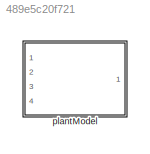
MODEL slx_489e5c20f721
KIND library
CONFIG AbsTol = auto
CONFIG EnableMultiTasking = off
CONFIG FixedStep = auto
CONFIG MaxStep = auto
CONFIG MinStep = auto
CONFIG RelTol = 1e-3
CONFIG SampleTimeConstraint = Unconstrained
CONFIG Solver = VariableStepAuto
CONFIG SolverName = VariableStepAuto
CONFIG StartTime = 0.0
CONFIG StopTime = 10.0
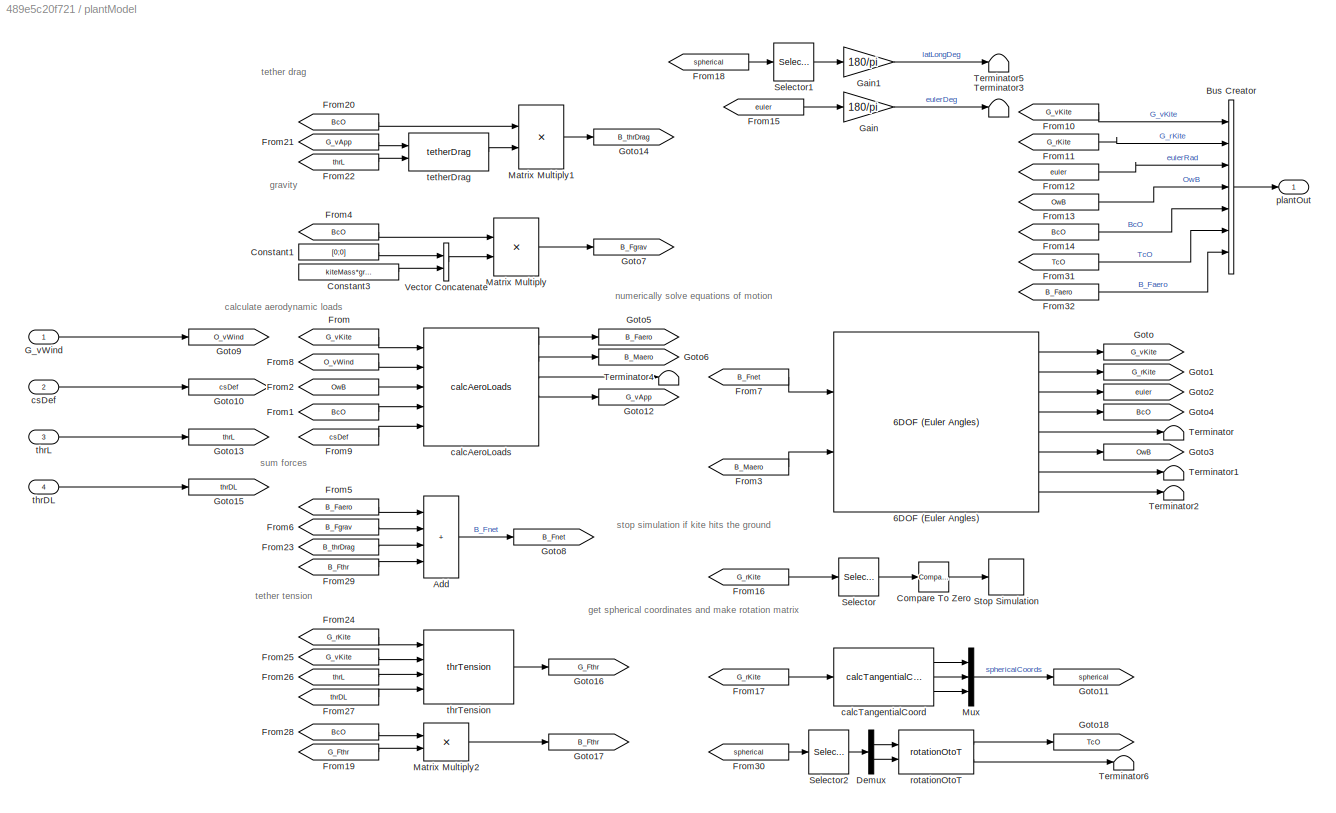
BLOCK [SubSystem] plantModel
  Ports = [4, 1]
  RequestExecContextInheritance = off
BLOCK [Reference] plantModel/6DOF (Euler Angles)  REF=shared6dof/6DOF (Euler Angles)
  Ports = [2, 8]
  SourceBlock = shared6dof/6DOF (Euler Angles)
  SourceProductBaseCode = AE,PW,MT,VE,VP
  SourceType = 6DOF EoM (Body Axis)
BLOCK [Sum] plantModel/Add
  IconShape = rectangular
  Inputs = ++++
  Ports = [4, 1]
BLOCK [BusCreator] plantModel/Bus Creator
  DisplayOption = bar
  InheritFromInputs = on
  Inputs = 7
  Ports = [7, 1]
BLOCK [Reference] plantModel/Compare To Zero  REF=simulink/Logic and Bit
Operations/Compare
To Zero
  Ports = [1, 1]
  SourceBlock = simulink/Logic and Bit\nOperations/Compare\nTo Zero
  SourceProductBaseCode = SL
  SourceType = Compare To Zero
BLOCK [Constant] plantModel/Constant1
  Value = [0;0]
  VectorParams1D = off
BLOCK [Constant] plantModel/Constant3
  Value = kiteMass*gravAccl
BLOCK [Demux] plantModel/Demux
  Outputs = 2
  Ports = [1, 2]
BLOCK [From] plantModel/From
  GotoTag = G_vKite
BLOCK [From] plantModel/From1
  GotoTag = BcO
BLOCK [From] plantModel/From10
  GotoTag = G_vKite
BLOCK [From] plantModel/From11
  GotoTag = G_rKite
BLOCK [From] plantModel/From12
  GotoTag = euler
BLOCK [From] plantModel/From13
  GotoTag = OwB
BLOCK [From] plantModel/From14
  GotoTag = BcO
BLOCK [From] plantModel/From15
  GotoTag = euler
BLOCK [From] plantModel/From16
  GotoTag = G_rKite
BLOCK [From] plantModel/From17
  GotoTag = G_rKite
BLOCK [From] plantModel/From18
  GotoTag = spherical
BLOCK [From] plantModel/From19
  GotoTag = G_Fthr
BLOCK [From] plantModel/From2
  GotoTag = OwB
BLOCK [From] plantModel/From20
  GotoTag = BcO
BLOCK [From] plantModel/From21
  GotoTag = G_vApp
BLOCK [From] plantModel/From22
  GotoTag = thrL
BLOCK [From] plantModel/From23
  GotoTag = B_thrDrag
BLOCK [From] plantModel/From24
  GotoTag = G_rKite
BLOCK [From] plantModel/From25
  GotoTag = G_vKite
BLOCK [From] plantModel/From26
  GotoTag = thrL
BLOCK [From] plantModel/From27
  GotoTag = thrDL
BLOCK [From] plantModel/From28
  GotoTag = BcO
BLOCK [From] plantModel/From29
  GotoTag = B_Fthr
BLOCK [From] plantModel/From3
  GotoTag = B_Maero
BLOCK [From] plantModel/From30
  GotoTag = spherical
BLOCK [From] plantModel/From31
  GotoTag = TcO
BLOCK [From] plantModel/From32
  GotoTag = B_Faero
BLOCK [From] plantModel/From4
  GotoTag = BcO
BLOCK [From] plantModel/From5
  GotoTag = B_Faero
BLOCK [From] plantModel/From6
  GotoTag = B_Fgrav
BLOCK [From] plantModel/From7
  GotoTag = B_Fnet
BLOCK [From] plantModel/From8
  GotoTag = O_vWind
BLOCK [From] plantModel/From9
  GotoTag = csDef
BLOCK [Inport] plantModel/G_vWind
BLOCK [Gain] plantModel/Gain
  Gain = 180/pi
BLOCK [Gain] plantModel/Gain1
  Gain = 180/pi
BLOCK [Goto] plantModel/Goto
  GotoTag = G_vKite
BLOCK [Goto] plantModel/Goto1
  GotoTag = G_rKite
BLOCK [Goto] plantModel/Goto10
  GotoTag = csDef
BLOCK [Goto] plantModel/Goto11
  GotoTag = spherical
BLOCK [Goto] plantModel/Goto12
  GotoTag = G_vApp
BLOCK [Goto] plantModel/Goto13
  GotoTag = thrL
BLOCK [Goto] plantModel/Goto14
  GotoTag = B_thrDrag
BLOCK [Goto] plantModel/Goto15
  GotoTag = thrDL
BLOCK [Goto] plantModel/Goto16
  GotoTag = G_Fthr
BLOCK [Goto] plantModel/Goto17
  GotoTag = B_Fthr
BLOCK [Goto] plantModel/Goto18
  GotoTag = TcO
BLOCK [Goto] plantModel/Goto2
  GotoTag = euler
BLOCK [Goto] plantModel/Goto3
  GotoTag = OwB
BLOCK [Goto] plantModel/Goto4
  GotoTag = BcO
BLOCK [Goto] plantModel/Goto5
  GotoTag = B_Faero
BLOCK [Goto] plantModel/Goto6
  GotoTag = B_Maero
BLOCK [Goto] plantModel/Goto7
  GotoTag = B_Fgrav
BLOCK [Goto] plantModel/Goto8
  GotoTag = B_Fnet
BLOCK [Goto] plantModel/Goto9
  GotoTag = O_vWind
BLOCK [Product] plantModel/Matrix Multiply
  Multiplication = Matrix(*)
  Ports = [2, 1]
BLOCK [Product] plantModel/Matrix Multiply1
  Multiplication = Matrix(*)
  Ports = [2, 1]
BLOCK [Product] plantModel/Matrix Multiply2
  Multiplication = Matrix(*)
  Ports = [2, 1]
BLOCK [Mux] plantModel/Mux
  DisplayOption = bar
  Inputs = 3
  Ports = [3, 1]
BLOCK [Selector] plantModel/Selector
  IndexOptions = Index vector (dialog)
  Indices = 3
  InputPortWidth = 3
  OutputSizes = 1
  Ports = [1, 1]
BLOCK [Selector] plantModel/Selector1
  IndexOptions = Index vector (dialog)
  Indices = [1 2]
  InputPortWidth = 3
  OutputSizes = 1
  Ports = [1, 1]
BLOCK [Selector] plantModel/Selector2
  IndexOptions = Index vector (dialog)
  Indices = [1 2]
  InputPortWidth = 3
  OutputSizes = 1
  Ports = [1, 1]
BLOCK [Stop] plantModel/Stop Simulation
BLOCK [Terminator] plantModel/Terminator
BLOCK [Terminator] plantModel/Terminator1
BLOCK [Terminator] plantModel/Terminator2
BLOCK [Terminator] plantModel/Terminator3
BLOCK [Terminator] plantModel/Terminator4
BLOCK [Terminator] plantModel/Terminator5
BLOCK [Terminator] plantModel/Terminator6
BLOCK [Concatenate] plantModel/Vector Concatenate
  Ports = [2, 1]
BLOCK [Reference] plantModel/calcAeroLoads  REF=calcAeroForcesInB/calcAeroLoads
  Ports = [5, 6]
  SourceBlock = calcAeroForcesInB/calcAeroLoads
BLOCK [Reference] plantModel/calcTangentialCoord  REF=calcTangentialCoord_ul/calcTangentialCoord
  Ports = [1, 3]
  SourceBlock = calcTangentialCoord_ul/calcTangentialCoord
  SourceType = SubSystem
BLOCK [Inport] plantModel/csDef
  Port = 2
BLOCK [Outport] plantModel/plantOut
BLOCK [Reference] plantModel/rotationOtoT  REF=makeOcT_cl/rotationOtoT
  Ports = [2, 2]
  SourceBlock = makeOcT_cl/rotationOtoT
  SourceType = SubSystem
BLOCK [Reference] plantModel/tetherDrag  REF=calcThrDrag_ul/tetherDrag
  Ports = [2, 1]
  SourceBlock = calcThrDrag_ul/tetherDrag
BLOCK [Inport] plantModel/thrDL
  Port = 4
BLOCK [Inport] plantModel/thrL
  Port = 3
BLOCK [Reference] plantModel/thrTension  REF=calcThrTension_ul/thrTension
  Ports = [4, 1]
  SourceBlock = calcThrTension_ul/thrTension
ANNOTATION plantModel: calculate aerodynamic loads
ANNOTATION plantModel: get spherical coordinates and make rotation matrix
ANNOTATION plantModel: gravity
ANNOTATION plantModel: numerically solve equations of motion
ANNOTATION plantModel: stop simulation if kite hits the ground
ANNOTATION plantModel: sum forces
ANNOTATION plantModel: tether drag
ANNOTATION plantModel: tether tension
LINE plantModel/6DOF (Euler Angles):1 -> plantModel/Goto:1
LINE plantModel/6DOF (Euler Angles):2 -> plantModel/Goto1:1
LINE plantModel/6DOF (Euler Angles):3 -> plantModel/Goto2:1
LINE plantModel/6DOF (Euler Angles):4 -> plantModel/Goto4:1
LINE plantModel/6DOF (Euler Angles):5 -> plantModel/Terminator:1
LINE plantModel/6DOF (Euler Angles):6 -> plantModel/Goto3:1
LINE plantModel/6DOF (Euler Angles):7 -> plantModel/Terminator1:1
LINE plantModel/6DOF (Euler Angles):8 -> plantModel/Terminator2:1
LINE plantModel/Add:1 -> plantModel/Goto8:1
LINE plantModel/Bus Creator:1 -> plantModel/plantOut:1
LINE plantModel/Compare To Zero:1 -> plantModel/Stop Simulation:1
LINE plantModel/Constant1:1 -> plantModel/Vector Concatenate:1
LINE plantModel/Constant3:1 -> plantModel/Vector Concatenate:2
LINE plantModel/Demux:1 -> plantModel/rotationOtoT:1
LINE plantModel/Demux:2 -> plantModel/rotationOtoT:2
LINE plantModel/From10:1 -> plantModel/Bus Creator:1
LINE plantModel/From11:1 -> plantModel/Bus Creator:2
LINE plantModel/From12:1 -> plantModel/Bus Creator:3
LINE plantModel/From13:1 -> plantModel/Bus Creator:4
LINE plantModel/From14:1 -> plantModel/Bus Creator:5
LINE plantModel/From15:1 -> plantModel/Gain:1
LINE plantModel/From16:1 -> plantModel/Selector:1
LINE plantModel/From17:1 -> plantModel/calcTangentialCoord:1
LINE plantModel/From18:1 -> plantModel/Selector1:1
LINE plantModel/From19:1 -> plantModel/Matrix Multiply2:2
LINE plantModel/From1:1 -> plantModel/calcAeroLoads:4
LINE plantModel/From20:1 -> plantModel/Matrix Multiply1:1
LINE plantModel/From21:1 -> plantModel/tetherDrag:1
LINE plantModel/From22:1 -> plantModel/tetherDrag:2
LINE plantModel/From23:1 -> plantModel/Add:3
LINE plantModel/From24:1 -> plantModel/thrTension:1
LINE plantModel/From25:1 -> plantModel/thrTension:2
LINE plantModel/From26:1 -> plantModel/thrTension:3
LINE plantModel/From27:1 -> plantModel/thrTension:4
LINE plantModel/From28:1 -> plantModel/Matrix Multiply2:1
LINE plantModel/From29:1 -> plantModel/Add:4
LINE plantModel/From2:1 -> plantModel/calcAeroLoads:3
LINE plantModel/From30:1 -> plantModel/Selector2:1
LINE plantModel/From31:1 -> plantModel/Bus Creator:6
LINE plantModel/From32:1 -> plantModel/Bus Creator:7
LINE plantModel/From3:1 -> plantModel/6DOF (Euler Angles):2
LINE plantModel/From4:1 -> plantModel/Matrix Multiply:1
LINE plantModel/From5:1 -> plantModel/Add:1
LINE plantModel/From6:1 -> plantModel/Add:2
LINE plantModel/From7:1 -> plantModel/6DOF (Euler Angles):1
LINE plantModel/From8:1 -> plantModel/calcAeroLoads:2
LINE plantModel/From9:1 -> plantModel/calcAeroLoads:5
LINE plantModel/From:1 -> plantModel/calcAeroLoads:1
LINE plantModel/G_vWind:1 -> plantModel/Goto9:1
LINE plantModel/Gain1:1 -> plantModel/Terminator5:1
LINE plantModel/Gain:1 -> plantModel/Terminator3:1
LINE plantModel/Matrix Multiply1:1 -> plantModel/Goto14:1
LINE plantModel/Matrix Multiply2:1 -> plantModel/Goto17:1
LINE plantModel/Matrix Multiply:1 -> plantModel/Goto7:1
LINE plantModel/Mux:1 -> plantModel/Goto11:1
LINE plantModel/Selector1:1 -> plantModel/Gain1:1
LINE plantModel/Selector2:1 -> plantModel/Demux:1
LINE plantModel/Selector:1 -> plantModel/Compare To Zero:1
LINE plantModel/Vector Concatenate:1 -> plantModel/Matrix Multiply:2
LINE plantModel/calcAeroLoads:1 -> plantModel/Goto5:1
LINE plantModel/calcAeroLoads:2 -> plantModel/Goto6:1
LINE plantModel/calcAeroLoads:3 -> plantModel/Terminator4:1
LINE plantModel/calcAeroLoads:4 -> plantModel/Goto12:1
LINE plantModel/calcTangentialCoord:1 -> plantModel/Mux:1
LINE plantModel/calcTangentialCoord:2 -> plantModel/Mux:2
LINE plantModel/calcTangentialCoord:3 -> plantModel/Mux:3
LINE plantModel/csDef:1 -> plantModel/Goto10:1
LINE plantModel/rotationOtoT:1 -> plantModel/Goto18:1
LINE plantModel/rotationOtoT:2 -> plantModel/Terminator6:1
LINE plantModel/tetherDrag:1 -> plantModel/Matrix Multiply1:2
LINE plantModel/thrDL:1 -> plantModel/Goto15:1
LINE plantModel/thrL:1 -> plantModel/Goto13:1
LINE plantModel/thrTension:1 -> plantModel/Goto16:1
